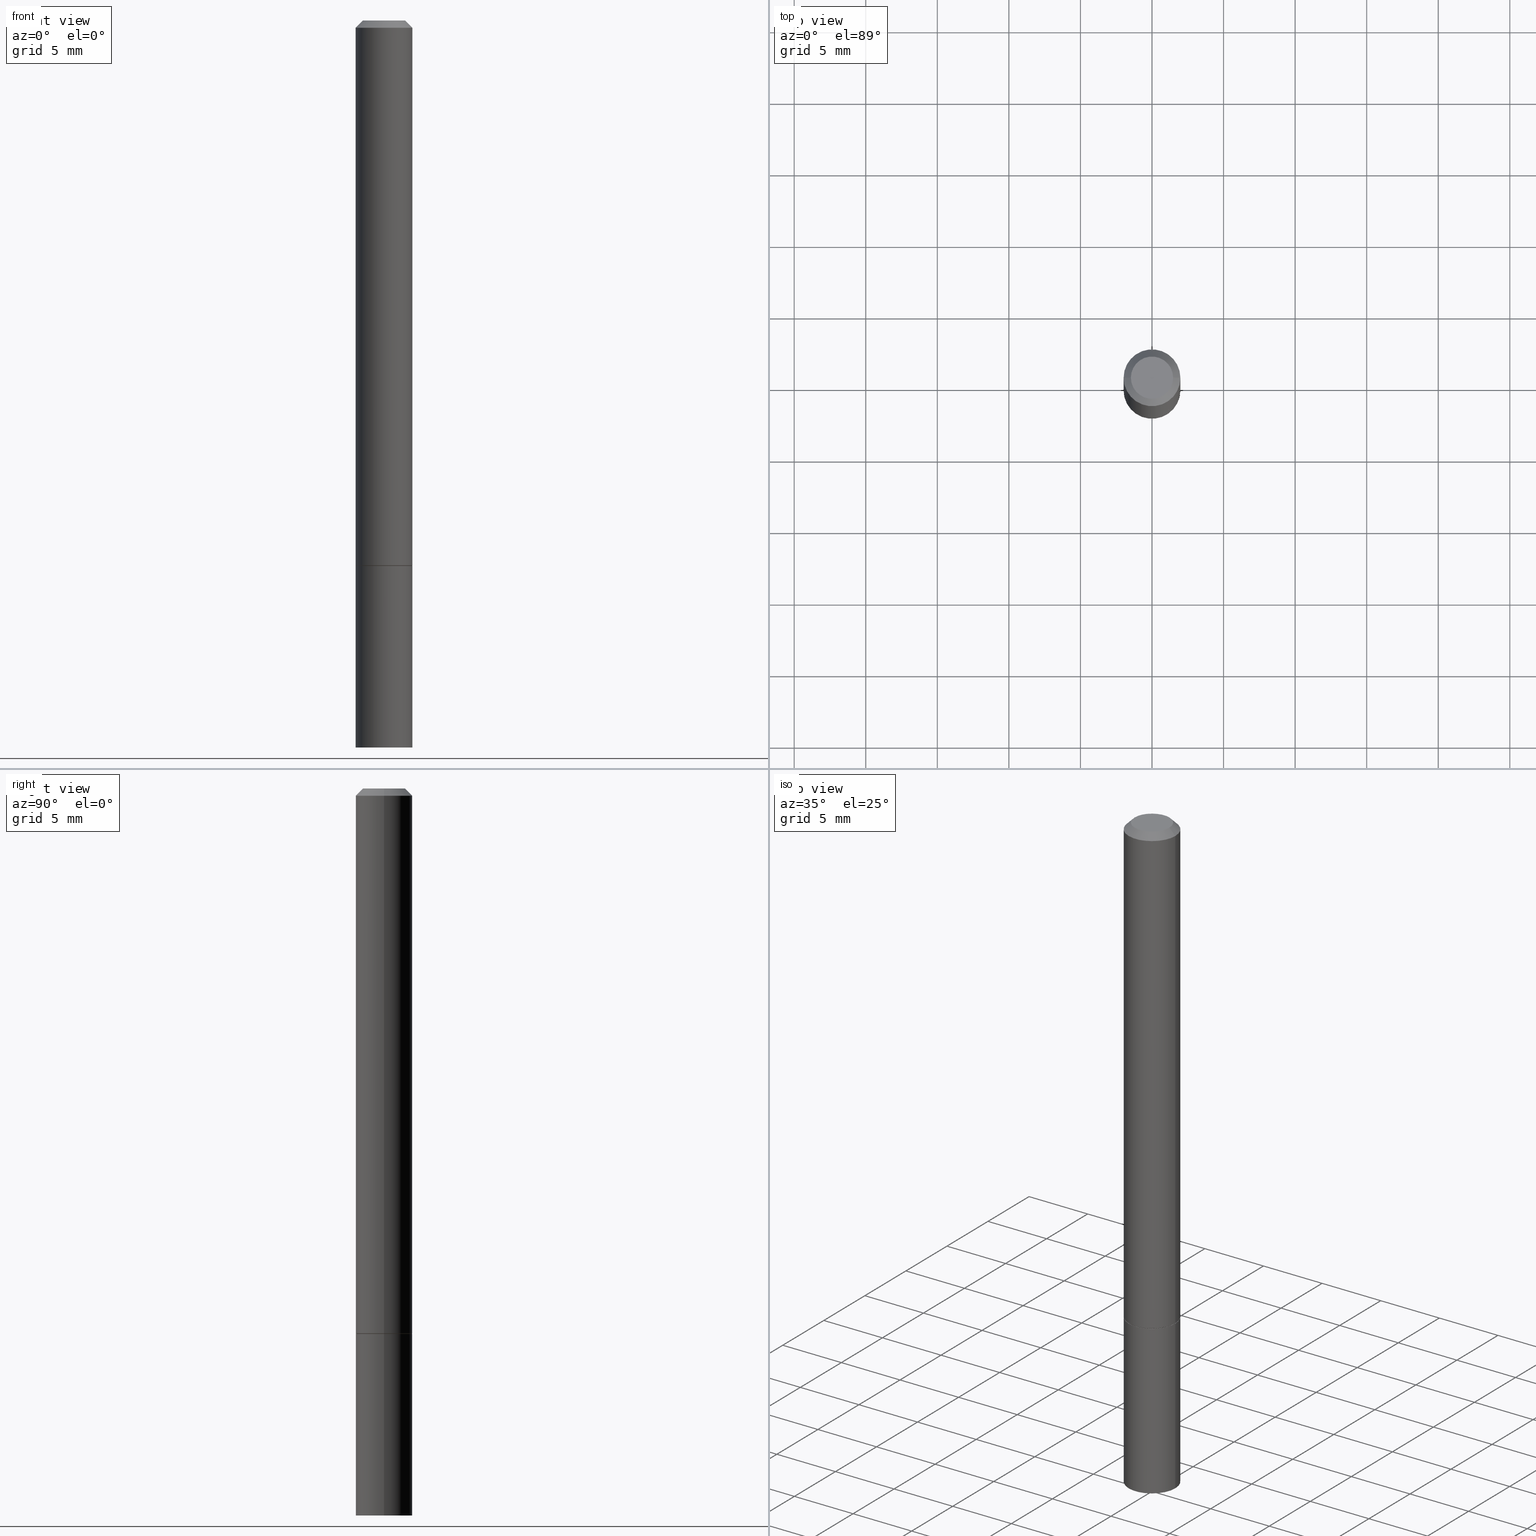
[diagram: canonical four-view strip — front | top / right | iso, engineering-drawing reading convention]
A machine part, canonical four-view strip (front | top / right | iso — engineering-drawing reading convention). The complete STEP part file that produces these views, byte-faithful:
ISO-10303-21;
HEADER;
FILE_DESCRIPTION (( 'STEP AP203' ),
    '1' );
FILE_NAME ('30000.STEP',
    '2023-03-21T20:20:12',
    ( '' ),
    ( '' ),
    'SwSTEP 2.0',
    'SolidWorks 2022',
    '' );
FILE_SCHEMA (( 'CONFIG_CONTROL_DESIGN' ));
ENDSEC;

DATA;
#1 = CC_DESIGN_PERSON_AND_ORGANIZATION_ASSIGNMENT ( #252, #279, ( #380 ) ) ;
#2 = ORIENTED_EDGE ( 'NONE', *, *, #144, .F. ) ;
#3 = COORDINATED_UNIVERSAL_TIME_OFFSET ( 5, 0, .BEHIND. ) ;
#4 = ADVANCED_FACE ( 'NONE', ( #373 ), #352, .T. ) ;
#5 = ORIENTED_EDGE ( 'NONE', *, *, #340, .F. ) ;
#6 = DATE_TIME_ROLE ( 'creation_date' ) ;
#7 = ORIENTED_EDGE ( 'NONE', *, *, #127, .F. ) ;
#8 = CARTESIAN_POINT ( 'NONE',  ( 1.043851414335219820E-46, -1.490343170380447200E-32, -4.268512490100411279E-18 ) ) ;
#9 = DIRECTION ( 'NONE',  ( 1.000000000000000000, -6.982962677686266711E-15, 4.876176775795935232E-29 ) ) ;
#10 = VECTOR ( 'NONE', #174, 39.37007874015748854 ) ;
#11 = CALENDAR_DATE ( 2023, 21, 3 ) ;
#12 = DIRECTION ( 'NONE',  ( -1.000000000000000000, 6.982962677686265922E-15, -4.876176775795935793E-29 ) ) ;
#13 = LOCAL_TIME ( 16, 20, 12.00000000000000000, #157 ) ;
#14 = ORIENTED_EDGE ( 'NONE', *, *, #283, .F. ) ;
#15 = CARTESIAN_POINT ( 'NONE',  ( 3.665757740471518732E-29, -5.233730526925875170E-15, -1.498999999999999666 ) ) ;
#16 = ORGANIZATION ( 'UNSPECIFIED', 'UNSPECIFIED', '' ) ;
#17 = DESIGN_CONTEXT ( 'detailed design', #45, 'design' ) ;
#18 = ORIENTED_EDGE ( 'NONE', *, *, #304, .F. ) ;
#19 = DIRECTION ( 'NONE',  ( 1.000000000000000000, -6.982962677686265922E-15, 4.876176775795935793E-29 ) ) ;
#20 = AXIS2_PLACEMENT_3D ( 'NONE', #8, #126, #372 ) ;
#21 = VERTEX_POINT ( 'NONE', #226 ) ;
#22 = PERSON_AND_ORGANIZATION ( #269, #16 ) ;
#23 = ADVANCED_FACE ( 'NONE', ( #345 ), #211, .F. ) ;
#24 = EDGE_LOOP ( 'NONE', ( #125, #233, #192, #294 ) ) ;
#25 = PERSON_AND_ORGANIZATION_ROLE ( 'design_owner' ) ;
#26 = FACE_OUTER_BOUND ( 'NONE', #348, .T. ) ;
#27 = LENGTH_MEASURE_WITH_UNIT ( LENGTH_MEASURE( 0.02539999999999999897 ), #86 );
#28 = EDGE_CURVE ( 'NONE', #322, #280, #35, .T. ) ;
#29 = CIRCLE ( 'NONE', #184, 0.07810000000000000275 ) ;
#30 = FACE_OUTER_BOUND ( 'NONE', #381, .T. ) ;
#31 = CARTESIAN_POINT ( 'NONE',  ( 0.07809999999999980846, -6.056345204028183286E-16, -0.02000000000000001776 ) ) ;
#32 = DIRECTION ( 'NONE',  ( 2.438088387897960049E-29, -3.491481338843145188E-15, -1.000000000000000000 ) ) ;
#33 = APPROVAL_DATE_TIME ( #207, #102 ) ;
#34 = AXIS2_PLACEMENT_3D ( 'NONE', #168, #111, #41 ) ;
#35 = CIRCLE ( 'NONE', #92, 0.07810000000000000275 ) ;
#36 = EDGE_CURVE ( 'NONE', #280, #322, #138, .T. ) ;
#37 = PRODUCT_DEFINITION_FORMATION_WITH_SPECIFIED_SOURCE ( 'ANY', '', #187, .NOT_KNOWN. ) ;
#38 = ADVANCED_FACE ( 'NONE', ( #61 ), #361, .F. ) ;
#39 = AXIS2_PLACEMENT_3D ( 'NONE', #88, #240, #360 ) ;
#40 = FACE_OUTER_BOUND ( 'NONE', #24, .T. ) ;
#41 = DIRECTION ( 'NONE',  ( 1.000000000000000000, -6.982962677686267499E-15, 0.000000000000000000 ) ) ;
#42 = CARTESIAN_POINT ( 'NONE',  ( -0.07809999999999980846, 4.755397583504331521E-16, -0.02000000000000001776 ) ) ;
#43 = AXIS2_PLACEMENT_3D ( 'NONE', #358, #271, #302 ) ;
#44 = ORIENTED_EDGE ( 'NONE', *, *, #144, .T. ) ;
#45 = APPLICATION_CONTEXT ( 'configuration controlled 3d designs of mechanical parts and assemblies' ) ;
#46 = CYLINDRICAL_SURFACE ( 'NONE', #73, 0.07810000000000000275 ) ;
#47 = CC_DESIGN_PERSON_AND_ORGANIZATION_ASSIGNMENT ( #191, #334, ( #37 ) ) ;
#48 = ORIENTED_EDGE ( 'NONE', *, *, #243, .T. ) ;
#49 = FACE_OUTER_BOUND ( 'NONE', #128, .T. ) ;
#50 = CC_DESIGN_APPROVAL ( #102, ( #380 ) ) ;
#51 = DIRECTION ( 'NONE',  ( -2.445468806185136597E-29, 3.491481338843145583E-15, 1.000000000000000000 ) ) ;
#52 = APPLICATION_PROTOCOL_DEFINITION ( 'international standard', 'config_control_design', 1994, #72 ) ;
#53 = AXIS2_PLACEMENT_3D ( 'NONE', #371, #51, #169 ) ;
#54 = CIRCLE ( 'NONE', #123, 0.07710000000000000187 ) ;
#55 = ORIENTED_EDGE ( 'NONE', *, *, #209, .F. ) ;
#56 = DIRECTION ( 'NONE',  ( 1.000000000000000000, 0.000000000000000000, 0.000000000000000000 ) ) ;
#57 = DIRECTION ( 'NONE',  ( -1.000000000000000000, 6.982962677686265922E-15, 0.000000000000000000 ) ) ;
#58 = DIRECTION ( 'NONE',  ( 0.000000000000000000, 0.000000000000000000, 1.000000000000000000 ) ) ;
#59 = DIRECTION ( 'NONE',  ( 1.000000000000000000, -6.982962677686266711E-15, 4.876032197214162663E-29 ) ) ;
#60 = DIRECTION ( 'NONE',  ( -0.7071067811865465735, 2.468850131082246805E-15, -0.7071067811865484609 ) ) ;
#61 = FACE_OUTER_BOUND ( 'NONE', #172, .T. ) ;
#62 = DIMENSIONAL_EXPONENTS ( 1.000000000000000000, 0.000000000000000000, 0.000000000000000000, 0.000000000000000000, 0.000000000000000000, 0.000000000000000000, 0.000000000000000000 ) ;
#63 = CARTESIAN_POINT ( 'NONE',  ( 3.668203209277704335E-29, -5.237222008264717388E-15, -1.499999999999999778 ) ) ;
#64 = DIRECTION ( 'NONE',  ( -2.445468806185136597E-29, 3.491481338843145583E-15, 1.000000000000000000 ) ) ;
#65 = ADVANCED_FACE ( 'NONE', ( #94 ), #145, .F. ) ;
#66 = VECTOR ( 'NONE', #121, 39.37007874015748143 ) ;
#67 = PRODUCT_RELATED_PRODUCT_CATEGORY ( 'detail', '', ( #187 ) ) ;
#68 = ADVANCED_FACE ( 'NONE', ( #26 ), #87, .T. ) ;
#69 = LOCAL_TIME ( 16, 20, 12.00000000000000000, #308 ) ;
#70 = SHAPE_DEFINITION_REPRESENTATION ( #185, #305 ) ;
#71 = CARTESIAN_POINT ( 'NONE',  ( 0.07810000000000000275, -5.453693851272974364E-16, 3.808294061896625703E-30 ) ) ;
#72 = APPLICATION_CONTEXT ( 'configuration controlled 3d designs of mechanical parts and assemblies' ) ;
#73 = AXIS2_PLACEMENT_3D ( 'NONE', #130, #193, #251 ) ;
#74 = APPROVAL_STATUS ( 'not_yet_approved' ) ;
#75 = CYLINDRICAL_SURFACE ( 'NONE', #362, 0.07809999999999991949 ) ;
#76 = DATE_AND_TIME ( #11, #166 ) ;
#77 = CARTESIAN_POINT ( 'NONE',  ( 0.07809999999999980846, -6.056345204028183286E-16, -0.02000000000000001776 ) ) ;
#78 = ADVANCED_FACE ( 'NONE', ( #30 ), #213, .T. ) ;
#79 = EDGE_LOOP ( 'NONE', ( #365, #48, #2, #265 ) ) ;
#80 = DIRECTION ( 'NONE',  ( 1.000000000000000000, -6.982962677686266711E-15, 0.000000000000000000 ) ) ;
#81 = ORIENTED_EDGE ( 'NONE', *, *, #36, .T. ) ;
#82 = DIRECTION ( 'NONE',  ( 0.7071067811865465735, -7.319954787623252890E-15, -0.7071067811865484609 ) ) ;
#83 = EDGE_CURVE ( 'NONE', #376, #203, #216, .T. ) ;
#84 = ORIENTED_EDGE ( 'NONE', *, *, #340, .T. ) ;
#85 = VERTEX_POINT ( 'NONE', #363 ) ;
#86 =( LENGTH_UNIT ( ) NAMED_UNIT ( * ) SI_UNIT ( $, .METRE. ) );
#87 = CONICAL_SURFACE ( 'NONE', #95, 0.07809999999999980846, 0.7853981633974469467 ) ;
#88 = CARTESIAN_POINT ( 'NONE',  ( 3.668203209277704335E-29, -5.237222008264717388E-15, -1.499999999999999778 ) ) ;
#89 = LOCAL_TIME ( 16, 20, 12.00000000000000000, #115 ) ;
#90 = EDGE_CURVE ( 'NONE', #250, #112, #129, .T. ) ;
#91 = CARTESIAN_POINT ( 'NONE',  ( 0.07809999999999991949, -5.453693851272968448E-16, 3.808294061896621499E-30 ) ) ;
#92 = AXIS2_PLACEMENT_3D ( 'NONE', #63, #206, #238 ) ;
#93 = DIRECTION ( 'NONE',  ( -1.000000000000000000, 6.982962677686267499E-15, 0.000000000000000000 ) ) ;
#94 = FACE_OUTER_BOUND ( 'NONE', #343, .T. ) ;
#95 = AXIS2_PLACEMENT_3D ( 'NONE', #151, #208, #93 ) ;
#96 = CALENDAR_DATE ( 2023, 21, 3 ) ;
#97 = APPROVAL_DATE_TIME ( #370, #287 ) ;
#98 = ORIENTED_EDGE ( 'NONE', *, *, #304, .T. ) ;
#99 = DIRECTION ( 'NONE',  ( -2.445468806185136597E-29, 3.491481338843145583E-15, 1.000000000000000000 ) ) ;
#100 = VECTOR ( 'NONE', #60, 39.37007874015748143 ) ;
#101 = PERSON_AND_ORGANIZATION_ROLE ( 'classification_officer' ) ;
#102 = APPROVAL ( #263, 'UNSPECIFIED' ) ;
#103 = CARTESIAN_POINT ( 'NONE',  ( 0.000000000000000000, 0.000000000000000000, 0.000000000000000000 ) ) ;
#104 = APPROVAL_ROLE ( '' ) ;
#105 = ORIENTED_EDGE ( 'NONE', *, *, #28, .F. ) ;
#106 = CARTESIAN_POINT ( 'NONE',  ( -0.07810000000000000275, 5.549338766286382647E-16, -3.841688305489081275E-30 ) ) ;
#107 = ORIENTED_EDGE ( 'NONE', *, *, #90, .F. ) ;
#108 = EDGE_CURVE ( 'NONE', #85, #376, #387, .T. ) ;
#109 = CARTESIAN_POINT ( 'NONE',  ( 3.668203209277704335E-29, -5.237222008264717388E-15, -1.499999999999999778 ) ) ;
#110 = ORIENTED_EDGE ( 'NONE', *, *, #209, .T. ) ;
#111 = DIRECTION ( 'NONE',  ( -2.445468806185136597E-29, 3.491481338843145583E-15, 1.000000000000000000 ) ) ;
#112 = VERTEX_POINT ( 'NONE', #242 ) ;
#113 = CARTESIAN_POINT ( 'NONE',  ( -2.082594957119697378E-19, -6.968671878504553375E-15, -1.995906952437995097 ) ) ;
#114 = ORIENTED_EDGE ( 'NONE', *, *, #155, .T. ) ;
#115 = COORDINATED_UNIVERSAL_TIME_OFFSET ( 5, 0, .BEHIND. ) ;
#116 = AXIS2_PLACEMENT_3D ( 'NONE', #301, #32, #12 ) ;
#117 = DIRECTION ( 'NONE',  ( -2.445468806185136597E-29, 3.491481338843145583E-15, 1.000000000000000000 ) ) ;
#118 = CARTESIAN_POINT ( 'NONE',  ( 3.668203209277704335E-29, -5.237222008264717388E-15, -1.499999999999999778 ) ) ;
#119 = CARTESIAN_POINT ( 'NONE',  ( 4.881073619063774565E-29, -6.968463619008792106E-15, -1.995906952437995097 ) ) ;
#120 =( GEOMETRIC_REPRESENTATION_CONTEXT ( 3 ) GLOBAL_UNCERTAINTY_ASSIGNED_CONTEXT ( ( #264 ) ) GLOBAL_UNIT_ASSIGNED_CONTEXT ( ( #170, #232, #204 ) ) REPRESENTATION_CONTEXT ( 'NONE', 'WORKASPACE' ) );
#121 = DIRECTION ( 'NONE',  ( -2.445468806185136877E-29, 3.491481338843145188E-15, 1.000000000000000000 ) ) ;
#122 = CARTESIAN_POINT ( 'NONE',  ( 1.043851414335219820E-46, -1.490343170380447200E-32, -4.268512490100411279E-18 ) ) ;
#123 = AXIS2_PLACEMENT_3D ( 'NONE', #190, #307, #344 ) ;
#124 = MANIFOLD_SOLID_BREP ( 'Body-Move/Copy2[1]', #295 ) ;
#125 = ORIENTED_EDGE ( 'NONE', *, *, #330, .F. ) ;
#126 = DIRECTION ( 'NONE',  ( -2.445468806185136597E-29, 3.491481338843145583E-15, 1.000000000000000000 ) ) ;
#127 = EDGE_CURVE ( 'NONE', #229, #258, #284, .T. ) ;
#128 = EDGE_LOOP ( 'NONE', ( #110, #84, #105, #18 ) ) ;
#129 = CIRCLE ( 'NONE', #162, 0.05809999999999985315 ) ;
#130 = CARTESIAN_POINT ( 'NONE',  ( 0.000000000000000000, 0.000000000000000000, 0.000000000000000000 ) ) ;
#131 = LINE ( 'NONE', #77, #314 ) ;
#132 = CC_DESIGN_APPROVAL ( #287, ( #37 ) ) ;
#133 = COORDINATED_UNIVERSAL_TIME_OFFSET ( 5, 0, .BEHIND. ) ;
#134 = EDGE_LOOP ( 'NONE', ( #339, #218, #142, #262 ) ) ;
#135 = CARTESIAN_POINT ( 'NONE',  ( -0.07810000000000000275, -2.096846200222727419E-15, -1.498999999999999666 ) ) ;
#136 = ORIENTED_EDGE ( 'NONE', *, *, #108, .F. ) ;
#137 = LINE ( 'NONE', #349, #296 ) ;
#138 = CIRCLE ( 'NONE', #39, 0.07810000000000000275 ) ;
#139 = VECTOR ( 'NONE', #200, 39.37007874015748854 ) ;
#140 = ORIENTED_EDGE ( 'NONE', *, *, #150, .T. ) ;
#141 = PERSON_AND_ORGANIZATION ( #269, #16 ) ;
#142 = ORIENTED_EDGE ( 'NONE', *, *, #108, .T. ) ;
#143 = APPROVAL_ROLE ( '' ) ;
#144 = EDGE_CURVE ( 'NONE', #85, #320, #248, .T. ) ;
#145 = PLANE ( 'NONE',  #259 ) ;
#146 = DIRECTION ( 'NONE',  ( 1.000000000000000000, -6.982962677686265922E-15, 0.000000000000000000 ) ) ;
#147 = CIRCLE ( 'NONE', #364, 0.07810000000000000275 ) ;
#148 = DIRECTION ( 'NONE',  ( -2.445468806185136597E-29, 3.491481338843145583E-15, 1.000000000000000000 ) ) ;
#149 = LINE ( 'NONE', #113, #375 ) ;
#150 = EDGE_CURVE ( 'NONE', #246, #21, #29, .T. ) ;
#151 = CARTESIAN_POINT ( 'NONE',  ( 4.890937612370276662E-31, -6.982962677686296539E-17, -0.02000000000000001776 ) ) ;
#152 = LOCAL_TIME ( 16, 20, 12.00000000000000000, #3 ) ;
#153 = DIRECTION ( 'NONE',  ( 2.445468806185136597E-29, -3.491481338843145583E-15, -1.000000000000000000 ) ) ;
#154 = VECTOR ( 'NONE', #163, 39.37007874015748143 ) ;
#155 = EDGE_CURVE ( 'NONE', #229, #85, #355, .T. ) ;
#156 = CC_DESIGN_DATE_AND_TIME_ASSIGNMENT ( #367, #6, ( #380 ) ) ;
#157 = COORDINATED_UNIVERSAL_TIME_OFFSET ( 5, 0, .BEHIND. ) ;
#158 = CONICAL_SURFACE ( 'NONE', #171, 0.07809999999999980846, 0.7853981633974469467 ) ;
#159 = DIRECTION ( 'NONE',  ( -2.445468806185136597E-29, 3.491481338843145583E-15, 1.000000000000000000 ) ) ;
#160 = LINE ( 'NONE', #337, #139 ) ;
#161 = PERSON_AND_ORGANIZATION ( #269, #16 ) ;
#162 = AXIS2_PLACEMENT_3D ( 'NONE', #122, #327, #59 ) ;
#163 = DIRECTION ( 'NONE',  ( -2.445468806185136877E-29, 3.491481338843145188E-15, 1.000000000000000000 ) ) ;
#164 = VERTEX_POINT ( 'NONE', #119 ) ;
#165 = LINE ( 'NONE', #71, #154 ) ;
#166 = LOCAL_TIME ( 16, 20, 12.00000000000000000, #133 ) ;
#167 = EDGE_LOOP ( 'NONE', ( #7, #231 ) ) ;
#168 = CARTESIAN_POINT ( 'NONE',  ( 4.890937612370276662E-31, -6.982962677686296539E-17, -0.02000000000000001776 ) ) ;
#169 = DIRECTION ( 'NONE',  ( 1.000000000000000000, -6.982962677686266711E-15, 4.876176775795935232E-29 ) ) ;
#170 =( CONVERSION_BASED_UNIT ( 'INCH', #27 ) LENGTH_UNIT ( ) NAMED_UNIT ( #62 ) );
#171 = AXIS2_PLACEMENT_3D ( 'NONE', #290, #195, #286 ) ;
#172 = EDGE_LOOP ( 'NONE', ( #14, #289, #55 ) ) ;
#173 = ADVANCED_FACE ( 'NONE', ( #328 ), #180, .F. ) ;
#174 = DIRECTION ( 'NONE',  ( 0.7071067811865232589, -2.468850131082003836E-15, 0.7071067811865715536 ) ) ;
#175 = MECHANICAL_CONTEXT ( 'NONE', #72, 'mechanical' ) ;
#176 = CC_DESIGN_DATE_AND_TIME_ASSIGNMENT ( #76, #217, ( #336 ) ) ;
#177 = DIRECTION ( 'NONE',  ( 2.438088387897960049E-29, -3.491481338843145188E-15, -1.000000000000000000 ) ) ;
#178 = CARTESIAN_POINT ( 'NONE',  ( 0.000000000000000000, 0.000000000000000000, 0.000000000000000000 ) ) ;
#179 = ADVANCED_FACE ( 'NONE', ( #377 ), #310, .F. ) ;
#180 = PLANE ( 'NONE',  #116 ) ;
#181 = CARTESIAN_POINT ( 'NONE',  ( 0.000000000000000000, 0.000000000000000000, 0.000000000000000000 ) ) ;
#182 = AXIS2_PLACEMENT_3D ( 'NONE', #298, #153, #57 ) ;
#183 = CARTESIAN_POINT ( 'NONE',  ( 4.890937612370273194E-29, -6.982962677686291165E-15, -2.000000000000000000 ) ) ;
#184 = AXIS2_PLACEMENT_3D ( 'NONE', #183, #148, #325 ) ;
#185 = PRODUCT_DEFINITION_SHAPE ( 'NONE', 'NONE',  #380 ) ;
#186 = APPROVAL_PERSON_ORGANIZATION ( #254, #255, #104 ) ;
#187 = PRODUCT ( '30000', '30000', '', ( #175 ) ) ;
#188 = EDGE_CURVE ( 'NONE', #112, #376, #131, .T. ) ;
#189 = CIRCLE ( 'NONE', #306, 0.07810000000000000275 ) ;
#190 = CARTESIAN_POINT ( 'NONE',  ( 3.668203209277704335E-29, -5.237222008264717388E-15, -1.499999999999999778 ) ) ;
#191 = PERSON_AND_ORGANIZATION ( #269, #16 ) ;
#192 = ORIENTED_EDGE ( 'NONE', *, *, #83, .T. ) ;
#193 = DIRECTION ( 'NONE',  ( -2.445468806185136597E-29, 3.491481338843145583E-15, 1.000000000000000000 ) ) ;
#194 = APPROVAL_STATUS ( 'not_yet_approved' ) ;
#195 = DIRECTION ( 'NONE',  ( 2.445468806185136597E-29, -3.491481338843145583E-15, -1.000000000000000000 ) ) ;
#196 = VECTOR ( 'NONE', #230, 39.37007874015748143 ) ;
#197 = ORIENTED_EDGE ( 'NONE', *, *, #330, .T. ) ;
#198 = CARTESIAN_POINT ( 'NONE',  ( -0.07810000000000000275, -5.555158466346866012E-15, -1.499999999999999778 ) ) ;
#199 = ORIENTED_EDGE ( 'NONE', *, *, #354, .F. ) ;
#200 = DIRECTION ( 'NONE',  ( -0.7071067811865232589, 7.493145998870265808E-15, 0.7071067811865715536 ) ) ;
#201 = ORIENTED_EDGE ( 'NONE', *, *, #150, .F. ) ;
#202 = LINE ( 'NONE', #379, #100 ) ;
#203 = VERTEX_POINT ( 'NONE', #42 ) ;
#204 =( NAMED_UNIT ( * ) SI_UNIT ( $, .STERADIAN. ) SOLID_ANGLE_UNIT ( ) );
#205 = CC_DESIGN_PERSON_AND_ORGANIZATION_ASSIGNMENT ( #22, #25, ( #187 ) ) ;
#206 = DIRECTION ( 'NONE',  ( -2.445468806185136597E-29, 3.491481338843145583E-15, 1.000000000000000000 ) ) ;
#207 = DATE_AND_TIME ( #353, #89 ) ;
#208 = DIRECTION ( 'NONE',  ( 2.445468806185136597E-29, -3.491481338843145583E-15, -1.000000000000000000 ) ) ;
#209 = EDGE_CURVE ( 'NONE', #21, #246, #147, .T. ) ;
#210 = DIRECTION ( 'NONE',  ( 1.000000000000000000, -6.982962677686266711E-15, 0.000000000000000000 ) ) ;
#211 = CONICAL_SURFACE ( 'NONE', #323, 751.2258538476644389, 1.518436449235073482 ) ;
#212 = AXIS2_PLACEMENT_3D ( 'NONE', #366, #99, #266 ) ;
#213 = CYLINDRICAL_SURFACE ( 'NONE', #303, 0.07810000000000000275 ) ;
#214 = CARTESIAN_POINT ( 'NONE',  ( 3.668203209277704335E-29, -5.237222008264717388E-15, -1.499999999999999778 ) ) ;
#215 = EDGE_CURVE ( 'NONE', #320, #203, #374, .T. ) ;
#216 = CIRCLE ( 'NONE', #43, 0.07809999999999980846 ) ;
#217 = DATE_TIME_ROLE ( 'classification_date' ) ;
#218 = ORIENTED_EDGE ( 'NONE', *, *, #326, .T. ) ;
#219 = CALENDAR_DATE ( 2023, 21, 3 ) ;
#220 = ORIENTED_EDGE ( 'NONE', *, *, #36, .F. ) ;
#221 = CLOSED_SHELL ( 'NONE', ( #346, #245, #317, #68, #4, #359, #179, #65 ) ) ;
#222 = DIRECTION ( 'NONE',  ( 0.9986295347545742773, -7.033825938271998700E-15, -0.05233595624293709697 ) ) ;
#223 = SECURITY_CLASSIFICATION_LEVEL ( 'unclassified' ) ;
#224 = CARTESIAN_POINT ( 'NONE',  ( -0.05809999999999985315, 4.406249449620020947E-16, -4.268512490103370278E-18 ) ) ;
#225 = CALENDAR_DATE ( 2023, 21, 3 ) ;
#226 = CARTESIAN_POINT ( 'NONE',  ( 0.07809999999999991949, -7.518767571312248168E-15, -2.000000000000000000 ) ) ;
#227 = EDGE_CURVE ( 'NONE', #203, #376, #244, .T. ) ;
#228 = DIRECTION ( 'NONE',  ( -2.445468806185136877E-29, 3.491481338843145188E-15, 1.000000000000000000 ) ) ;
#229 = VERTEX_POINT ( 'NONE', #293 ) ;
#230 = DIRECTION ( 'NONE',  ( -2.445468806185136877E-29, 3.491481338843145188E-15, 1.000000000000000000 ) ) ;
#231 = ORIENTED_EDGE ( 'NONE', *, *, #311, .F. ) ;
#232 =( NAMED_UNIT ( * ) PLANE_ANGLE_UNIT ( ) SI_UNIT ( $, .RADIAN. ) );
#233 = ORIENTED_EDGE ( 'NONE', *, *, #188, .T. ) ;
#234 = FACE_OUTER_BOUND ( 'NONE', #256, .T. ) ;
#235 = ORIENTED_EDGE ( 'NONE', *, *, #386, .T. ) ;
#236 = AXIS2_PLACEMENT_3D ( 'NONE', #109, #316, #19 ) ;
#237 = CARTESIAN_POINT ( 'NONE',  ( 3.665757740471518732E-29, -5.233730526925875170E-15, -1.498999999999999666 ) ) ;
#238 = DIRECTION ( 'NONE',  ( 1.000000000000000000, -6.982962677686266711E-15, 0.000000000000000000 ) ) ;
#239 = AXIS2_PLACEMENT_3D ( 'NONE', #178, #58, #56 ) ;
#240 = DIRECTION ( 'NONE',  ( -2.445468806185136597E-29, 3.491481338843145583E-15, 1.000000000000000000 ) ) ;
#241 = VECTOR ( 'NONE', #228, 39.37007874015748143 ) ;
#242 = CARTESIAN_POINT ( 'NONE',  ( 0.05809999999999985315, -5.021147270366716439E-16, -4.268512490097237346E-18 ) ) ;
#243 = EDGE_CURVE ( 'NONE', #258, #320, #160, .T. ) ;
#244 = CIRCLE ( 'NONE', #34, 0.07809999999999980846 ) ;
#245 = ADVANCED_FACE ( 'NONE', ( #253 ), #75, .T. ) ;
#246 = VERTEX_POINT ( 'NONE', #341 ) ;
#247 = LINE ( 'NONE', #106, #241 ) ;
#248 = CIRCLE ( 'NONE', #268, 0.07810000000000000275 ) ;
#249 = PERSON_AND_ORGANIZATION ( #269, #16 ) ;
#250 = VERTEX_POINT ( 'NONE', #224 ) ;
#251 = DIRECTION ( 'NONE',  ( 1.000000000000000000, -6.982962677686266711E-15, 4.876176775795935232E-29 ) ) ;
#252 = PERSON_AND_ORGANIZATION ( #269, #16 ) ;
#253 = FACE_OUTER_BOUND ( 'NONE', #350, .T. ) ;
#254 = PERSON_AND_ORGANIZATION ( #269, #16 ) ;
#255 = APPROVAL ( #194, 'UNSPECIFIED' ) ;
#256 = EDGE_LOOP ( 'NONE', ( #318, #368, #114, #351 ) ) ;
#257 = FACE_OUTER_BOUND ( 'NONE', #79, .T. ) ;
#258 = VERTEX_POINT ( 'NONE', #260 ) ;
#259 = AXIS2_PLACEMENT_3D ( 'NONE', #389, #177, #383 ) ;
#260 = CARTESIAN_POINT ( 'NONE',  ( -0.07710000000000000187, -4.684095104645458124E-15, -1.499999999999999778 ) ) ;
#261 = CONICAL_SURFACE ( 'NONE', #324, 0.07710000000000000187, 0.7853981633974141952 ) ;
#262 = ORIENTED_EDGE ( 'NONE', *, *, #227, .F. ) ;
#263 = APPROVAL_STATUS ( 'not_yet_approved' ) ;
#264 = UNCERTAINTY_MEASURE_WITH_UNIT (LENGTH_MEASURE( 1.000000000000000082E-05 ), #170, 'distance_accuracy_value', 'NONE');
#265 = ORIENTED_EDGE ( 'NONE', *, *, #155, .F. ) ;
#266 = DIRECTION ( 'NONE',  ( 1.000000000000000000, -6.982962677686265922E-15, 0.000000000000000000 ) ) ;
#267 = DIRECTION ( 'NONE',  ( 2.445468806185136597E-29, -3.491481338843145583E-15, -1.000000000000000000 ) ) ;
#268 = AXIS2_PLACEMENT_3D ( 'NONE', #237, #64, #210 ) ;
#269 = PERSON ( 'UNSPECIFIED', 'UNSPECIFIED', 'UNSPECIFIED', ('UNSPECIFIED'), ('UNSPECIFIED'), ('UNSPECIFIED') ) ;
#270 = DIRECTION ( 'NONE',  ( -2.445468806185136597E-29, 3.491481338843145583E-15, 1.000000000000000000 ) ) ;
#271 = DIRECTION ( 'NONE',  ( -2.445468806185136597E-29, 3.491481338843145583E-15, 1.000000000000000000 ) ) ;
#272 = CC_DESIGN_SECURITY_CLASSIFICATION ( #336, ( #37 ) ) ;
#273 = DIRECTION ( 'NONE',  ( 1.000000000000000000, -6.982962677686266711E-15, 4.876176775795935232E-29 ) ) ;
#274 = ADVANCED_FACE ( 'NONE', ( #49 ), #46, .T. ) ;
#275 = CONICAL_SURFACE ( 'NONE', #212, 0.07710000000000000187, 0.7853981633974141952 ) ;
#276 = EDGE_LOOP ( 'NONE', ( #199, #315, #201 ) ) ;
#277 = PERSON_AND_ORGANIZATION_ROLE ( 'design_supplier' ) ;
#278 = ORIENTED_EDGE ( 'NONE', *, *, #28, .T. ) ;
#279 = PERSON_AND_ORGANIZATION_ROLE ( 'creator' ) ;
#280 = VERTEX_POINT ( 'NONE', #198 ) ;
#281 = DIRECTION ( 'NONE',  ( 1.000000000000000000, -6.982962677686266711E-15, 0.000000000000000000 ) ) ;
#282 = CARTESIAN_POINT ( 'NONE',  ( -0.07809999999999991949, 5.549338766286376731E-16, -3.841688305489077071E-30 ) ) ;
#283 = EDGE_CURVE ( 'NONE', #164, #21, #137, .T. ) ;
#284 = CIRCLE ( 'NONE', #333, 0.07710000000000000187 ) ;
#285 = ORIENTED_EDGE ( 'NONE', *, *, #215, .T. ) ;
#286 = DIRECTION ( 'NONE',  ( -1.000000000000000000, 6.982962677686267499E-15, 0.000000000000000000 ) ) ;
#287 = APPROVAL ( #74, 'UNSPECIFIED' ) ;
#288 = DATE_AND_TIME ( #225, #13 ) ;
#289 = ORIENTED_EDGE ( 'NONE', *, *, #354, .T. ) ;
#290 = CARTESIAN_POINT ( 'NONE',  ( 4.890937612370276662E-31, -6.982962677686296539E-17, -0.02000000000000001776 ) ) ;
#291 = APPROVAL_PERSON_ORGANIZATION ( #161, #287, #342 ) ;
#292 = ORIENTED_EDGE ( 'NONE', *, *, #227, .T. ) ;
#293 = CARTESIAN_POINT ( 'NONE',  ( 0.07710000000000000187, -5.775608430714328810E-15, -1.499999999999999778 ) ) ;
#294 = ORIENTED_EDGE ( 'NONE', *, *, #386, .F. ) ;
#295 = CLOSED_SHELL ( 'NONE', ( #274, #23, #38, #78, #173 ) ) ;
#296 = VECTOR ( 'NONE', #222, 39.37007874015748143 ) ;
#297 = ORIENTED_EDGE ( 'NONE', *, *, #90, .T. ) ;
#298 = CARTESIAN_POINT ( 'NONE',  ( 1.011592276483428826E-27, -1.444285671085496418E-13, -41.36598569259547986 ) ) ;
#299 = CARTESIAN_POINT ( 'NONE',  ( 0.07710000000000000187, -5.775608430714328810E-15, -1.499999999999999778 ) ) ;
#300 = CC_DESIGN_PERSON_AND_ORGANIZATION_ASSIGNMENT ( #338, #101, ( #336 ) ) ;
#301 = CARTESIAN_POINT ( 'NONE',  ( 5.453693851273340198E-16, 0.07809999999999475695, -1.500000000000000222 ) ) ;
#302 = DIRECTION ( 'NONE',  ( 1.000000000000000000, -6.982962677686267499E-15, 0.000000000000000000 ) ) ;
#303 = AXIS2_PLACEMENT_3D ( 'NONE', #181, #270, #273 ) ;
#304 = EDGE_CURVE ( 'NONE', #21, #322, #165, .T. ) ;
#305 = ADVANCED_BREP_SHAPE_REPRESENTATION ( '30000', ( #124, #385, #239 ), #120 ) ;
#306 = AXIS2_PLACEMENT_3D ( 'NONE', #15, #159, #281 ) ;
#307 = DIRECTION ( 'NONE',  ( -2.445468806185136597E-29, 3.491481338843145583E-15, 1.000000000000000000 ) ) ;
#308 = COORDINATED_UNIVERSAL_TIME_OFFSET ( 5, 0, .BEHIND. ) ;
#309 = ORIENTED_EDGE ( 'NONE', *, *, #83, .F. ) ;
#310 = PLANE ( 'NONE',  #236 ) ;
#311 = EDGE_CURVE ( 'NONE', #258, #229, #54, .T. ) ;
#312 = APPROVAL_DATE_TIME ( #288, #255 ) ;
#313 = CARTESIAN_POINT ( 'NONE',  ( 0.07810000000000000275, -5.782591393392014824E-15, -1.499999999999999778 ) ) ;
#314 = VECTOR ( 'NONE', #82, 39.37007874015748143 ) ;
#315 = ORIENTED_EDGE ( 'NONE', *, *, #283, .T. ) ;
#316 = DIRECTION ( 'NONE',  ( -2.438088387897960049E-29, 3.491481338843145188E-15, 1.000000000000000000 ) ) ;
#317 = ADVANCED_FACE ( 'NONE', ( #40 ), #158, .T. ) ;
#318 = ORIENTED_EDGE ( 'NONE', *, *, #243, .F. ) ;
#319 = DIRECTION ( 'NONE',  ( -2.445468806185136597E-29, 3.491481338843145583E-15, 1.000000000000000000 ) ) ;
#320 = VERTEX_POINT ( 'NONE', #135 ) ;
#321 = DIRECTION ( 'NONE',  ( -0.9986295347545742773, 6.790662755453666100E-15, -0.05233595624293709697 ) ) ;
#322 = VERTEX_POINT ( 'NONE', #313 ) ;
#323 = AXIS2_PLACEMENT_3D ( 'NONE', #390, #267, #331 ) ;
#324 = AXIS2_PLACEMENT_3D ( 'NONE', #118, #384, #146 ) ;
#325 = DIRECTION ( 'NONE',  ( 1.000000000000000000, -6.982962677686266711E-15, 0.000000000000000000 ) ) ;
#326 = EDGE_CURVE ( 'NONE', #320, #85, #189, .T. ) ;
#327 = DIRECTION ( 'NONE',  ( -2.445468806185136597E-29, 3.491481338843145583E-15, 1.000000000000000000 ) ) ;
#328 = FACE_OUTER_BOUND ( 'NONE', #378, .T. ) ;
#329 = CIRCLE ( 'NONE', #20, 0.05809999999999985315 ) ;
#330 = EDGE_CURVE ( 'NONE', #112, #250, #329, .T. ) ;
#331 = DIRECTION ( 'NONE',  ( -1.000000000000000000, 6.982962677686265922E-15, 0.000000000000000000 ) ) ;
#332 = DIRECTION ( 'NONE',  ( 1.000000000000000000, -6.982962677686265922E-15, 0.000000000000000000 ) ) ;
#333 = AXIS2_PLACEMENT_3D ( 'NONE', #214, #117, #332 ) ;
#334 = PERSON_AND_ORGANIZATION_ROLE ( 'creator' ) ;
#335 = ORIENTED_EDGE ( 'NONE', *, *, #188, .F. ) ;
#336 = SECURITY_CLASSIFICATION ( '', '', #223 ) ;
#337 = CARTESIAN_POINT ( 'NONE',  ( -0.07710000000000000187, -4.689393558993680526E-15, -1.499999999999999778 ) ) ;
#338 = PERSON_AND_ORGANIZATION ( #269, #16 ) ;
#339 = ORIENTED_EDGE ( 'NONE', *, *, #215, .F. ) ;
#340 = EDGE_CURVE ( 'NONE', #246, #280, #247, .T. ) ;
#341 = CARTESIAN_POINT ( 'NONE',  ( -0.07809999999999991949, -6.437593292558994518E-15, -2.000000000000000000 ) ) ;
#342 = APPROVAL_ROLE ( '' ) ;
#343 = EDGE_LOOP ( 'NONE', ( #297, #197 ) ) ;
#344 = DIRECTION ( 'NONE',  ( 1.000000000000000000, -6.982962677686265922E-15, 0.000000000000000000 ) ) ;
#345 = FACE_OUTER_BOUND ( 'NONE', #276, .T. ) ;
#346 = ADVANCED_FACE ( 'NONE', ( #257 ), #275, .T. ) ;
#347 = DIRECTION ( 'NONE',  ( -2.445468806185136597E-29, 3.491481338843145583E-15, 1.000000000000000000 ) ) ;
#348 = EDGE_LOOP ( 'NONE', ( #335, #107, #235, #292 ) ) ;
#349 = CARTESIAN_POINT ( 'NONE',  ( 2.082594958095883137E-19, -6.968671878504553375E-15, -1.995906952437995097 ) ) ;
#350 = EDGE_LOOP ( 'NONE', ( #44, #285, #309, #136 ) ) ;
#351 = ORIENTED_EDGE ( 'NONE', *, *, #326, .F. ) ;
#352 = CYLINDRICAL_SURFACE ( 'NONE', #53, 0.07809999999999991949 ) ;
#353 = CALENDAR_DATE ( 2023, 21, 3 ) ;
#354 = EDGE_CURVE ( 'NONE', #164, #246, #149, .T. ) ;
#355 = LINE ( 'NONE', #299, #10 ) ;
#356 = CC_DESIGN_PERSON_AND_ORGANIZATION_ASSIGNMENT ( #249, #277, ( #37 ) ) ;
#357 = APPROVAL_PERSON_ORGANIZATION ( #141, #102, #143 ) ;
#358 = CARTESIAN_POINT ( 'NONE',  ( 4.890937612370276662E-31, -6.982962677686296539E-17, -0.02000000000000001776 ) ) ;
#359 = ADVANCED_FACE ( 'NONE', ( #234 ), #261, .T. ) ;
#360 = DIRECTION ( 'NONE',  ( 1.000000000000000000, -6.982962677686266711E-15, 0.000000000000000000 ) ) ;
#361 = CONICAL_SURFACE ( 'NONE', #182, 751.2258538476644389, 1.518436449235073482 ) ;
#362 = AXIS2_PLACEMENT_3D ( 'NONE', #103, #319, #9 ) ;
#363 = CARTESIAN_POINT ( 'NONE',  ( 0.07810000000000000275, -5.779099912053172606E-15, -1.498999999999999666 ) ) ;
#364 = AXIS2_PLACEMENT_3D ( 'NONE', #369, #347, #80 ) ;
#365 = ORIENTED_EDGE ( 'NONE', *, *, #127, .T. ) ;
#366 = CARTESIAN_POINT ( 'NONE',  ( 3.668203209277704335E-29, -5.237222008264717388E-15, -1.499999999999999778 ) ) ;
#367 = DATE_AND_TIME ( #219, #69 ) ;
#368 = ORIENTED_EDGE ( 'NONE', *, *, #311, .T. ) ;
#369 = CARTESIAN_POINT ( 'NONE',  ( 4.890937612370273194E-29, -6.982962677686291165E-15, -2.000000000000000000 ) ) ;
#370 = DATE_AND_TIME ( #96, #152 ) ;
#371 = CARTESIAN_POINT ( 'NONE',  ( 0.000000000000000000, 0.000000000000000000, 0.000000000000000000 ) ) ;
#372 = DIRECTION ( 'NONE',  ( 1.000000000000000000, -6.982962677686266711E-15, 4.876032197214162663E-29 ) ) ;
#373 = FACE_OUTER_BOUND ( 'NONE', #134, .T. ) ;
#374 = LINE ( 'NONE', #282, #196 ) ;
#375 = VECTOR ( 'NONE', #321, 39.37007874015748143 ) ;
#376 = VERTEX_POINT ( 'NONE', #31 ) ;
#377 = FACE_OUTER_BOUND ( 'NONE', #167, .T. ) ;
#378 = EDGE_LOOP ( 'NONE', ( #278, #81 ) ) ;
#379 = CARTESIAN_POINT ( 'NONE',  ( -0.07809999999999980846, 4.755397583504331521E-16, -0.02000000000000001776 ) ) ;
#380 = PRODUCT_DEFINITION ( 'UNKNOWN', '', #37, #17 ) ;
#381 = EDGE_LOOP ( 'NONE', ( #5, #140, #98, #220 ) ) ;
#382 = APPLICATION_PROTOCOL_DEFINITION ( 'international standard', 'config_control_design', 1994, #45 ) ;
#383 = DIRECTION ( 'NONE',  ( -1.000000000000000000, 6.982962677686265922E-15, -4.876176775795935793E-29 ) ) ;
#384 = DIRECTION ( 'NONE',  ( -2.445468806185136597E-29, 3.491481338843145583E-15, 1.000000000000000000 ) ) ;
#385 = MANIFOLD_SOLID_BREP ( 'Body-Move/Copy2[2]', #221 ) ;
#386 = EDGE_CURVE ( 'NONE', #250, #203, #202, .T. ) ;
#387 = LINE ( 'NONE', #91, #66 ) ;
#388 = CC_DESIGN_APPROVAL ( #255, ( #336 ) ) ;
#389 = CARTESIAN_POINT ( 'NONE',  ( 4.057101315735710372E-16, 0.05809999999999985315, -2.049893220318364469E-16 ) ) ;
#390 = CARTESIAN_POINT ( 'NONE',  ( 1.011592276483428826E-27, -1.444285671085496418E-13, -41.36598569259547986 ) ) ;
ENDSEC;
END-ISO-10303-21;
